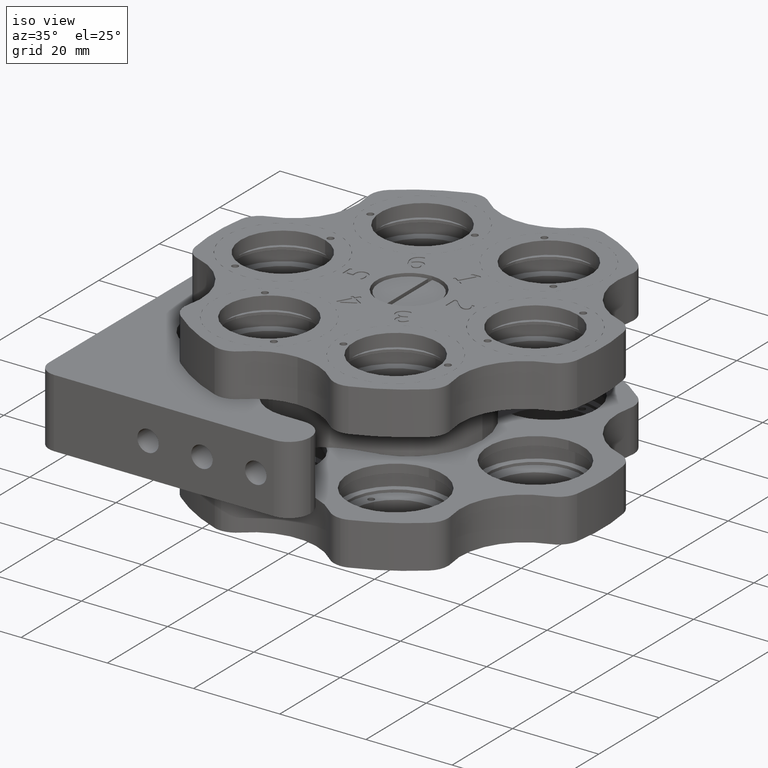
[diagram: clean part render]
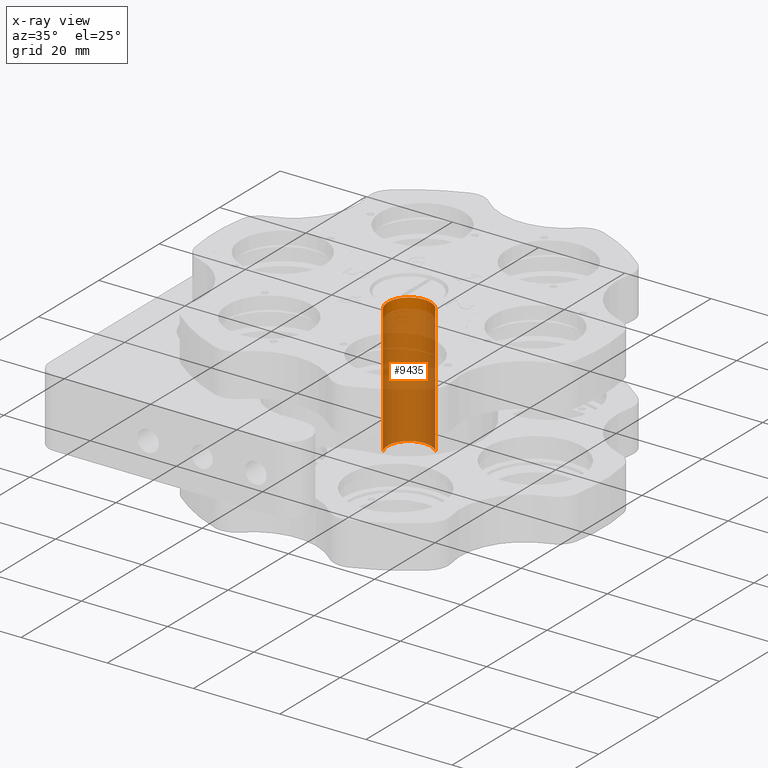
[diagram: x-ray — body ghosted, one internal face saturated and labeled with its STEP entity id]
A machine part, iso view, then the same camera in x-ray: the body is ghosted and one INTERNAL B-rep face — a face not visible from any outside direction — is saturated and labeled: STEP entity #9435.
In plain terms, the highlighted cylindrical surface (edge-blend (fillet) strip) has radius 5 mm, axis along (-0, -0, -1).
Its self-contained STEP definition (entity closure, byte-faithful):
#58 = EDGE_CURVE ( 'NONE', #17662, #6704, #1627, .T. ) ;
#1627 = LINE ( 'NONE', #25915, #4212 ) ;
#1712 = DIRECTION ( 'NONE',  ( -0.7427010864063202700, -0.6696231001472928700, 0.0000000000000000000 ) ) ;
#2376 = EDGE_LOOP ( 'NONE', ( #23895, #11425, #12045, #11269 ) ) ;
#2454 = AXIS2_PLACEMENT_3D ( 'NONE', #25892, #16141, #1712 ) ;
#4212 = VECTOR ( 'NONE', #22330, 1000.000000000000000 ) ;
#5158 = DIRECTION ( 'NONE',  ( 0.7427010864063202700, 0.6696231001472928700, 0.0000000000000000000 ) ) ;
#5739 = DIRECTION ( 'NONE',  ( 9.841748540453165100E-032, 1.224606353822379500E-016, 1.000000000000000000 ) ) ;
#6186 = DIRECTION ( 'NONE',  ( -9.841748540453165100E-032, -1.224606353822379500E-016, -1.000000000000000000 ) ) ;
#6704 = VERTEX_POINT ( 'NONE', #18986 ) ;
#7519 = DIRECTION ( 'NONE',  ( 0.7427010864063202700, 0.6696231001472928700, 0.0000000000000000000 ) ) ;
#9435 = ADVANCED_FACE ( 'NONE', ( #13862 ), #23756, .T. ) ;
#9923 = CIRCLE ( 'NONE', #17834, 5.000000000000000900 ) ;
#10743 = VECTOR ( 'NONE', #6186, 1000.000000000000000 ) ;
#11269 = ORIENTED_EDGE ( 'NONE', *, *, #21930, .F. ) ;
#11425 = ORIENTED_EDGE ( 'NONE', *, *, #58, .T. ) ;
#11694 = LINE ( 'NONE', #16657, #10743 ) ;
#12045 = ORIENTED_EDGE ( 'NONE', *, *, #15697, .T. ) ;
#13030 = AXIS2_PLACEMENT_3D ( 'NONE', #19894, #5739, #7519 ) ;
#13862 = FACE_OUTER_BOUND ( 'NONE', #2376, .T. ) ;
#14915 = VERTEX_POINT ( 'NONE', #15966 ) ;
#15119 = CARTESIAN_POINT ( 'NONE',  ( -3.283589743697203600E-016, 1.649066690577433400E-015, 7.000000000000002700 ) ) ;
#15628 = CARTESIAN_POINT ( 'NONE',  ( 3.713505432031602100, 3.348115500736466500, 7.000000000000002700 ) ) ;
#15697 = EDGE_CURVE ( 'NONE', #6704, #14915, #22299, .T. ) ;
#15966 = CARTESIAN_POINT ( 'NONE',  ( -3.713505432031603400, -3.348115500736466500, -23.09999999999999800 ) ) ;
#16141 = DIRECTION ( 'NONE',  ( -9.841748540453165100E-032, -1.224606353822379500E-016, -1.000000000000000000 ) ) ;
#16657 = CARTESIAN_POINT ( 'NONE',  ( -3.713505432031602500, -3.348115500736463800, 7.000000000000002700 ) ) ;
#17662 = VERTEX_POINT ( 'NONE', #15628 ) ;
#17772 = VERTEX_POINT ( 'NONE', #20866 ) ;
#17834 = AXIS2_PLACEMENT_3D ( 'NONE', #15119, #21365, #5158 ) ;
#18448 = EDGE_CURVE ( 'NONE', #17662, #17772, #9923, .T. ) ;
#18986 = CARTESIAN_POINT ( 'NONE',  ( 3.713505432031600300, 3.348115500736464700, -23.09999999999999800 ) ) ;
#19894 = CARTESIAN_POINT ( 'NONE',  ( -3.283589743697233200E-016, -2.036998434427929600E-015, -23.09999999999999800 ) ) ;
#20866 = CARTESIAN_POINT ( 'NONE',  ( -3.713505432031601200, -3.348115500736464700, 7.000000000000002700 ) ) ;
#21365 = DIRECTION ( 'NONE',  ( 9.841748540453165100E-032, 1.224606353822379500E-016, 1.000000000000000000 ) ) ;
#21930 = EDGE_CURVE ( 'NONE', #17772, #14915, #11694, .T. ) ;
#22299 = CIRCLE ( 'NONE', #13030, 5.000000000000000900 ) ;
#22330 = DIRECTION ( 'NONE',  ( -9.841748540453165100E-032, -1.224606353822379500E-016, -1.000000000000000000 ) ) ;
#23756 = CYLINDRICAL_SURFACE ( 'NONE', #2454, 5.000000000000000900 ) ;
#23895 = ORIENTED_EDGE ( 'NONE', *, *, #18448, .F. ) ;
#25892 = CARTESIAN_POINT ( 'NONE',  ( -3.283589743697203600E-016, 1.649066690577433400E-015, 7.000000000000002700 ) ) ;
#25915 = CARTESIAN_POINT ( 'NONE',  ( 3.713505432031601200, 3.348115500736467800, 7.000000000000002700 ) ) ;